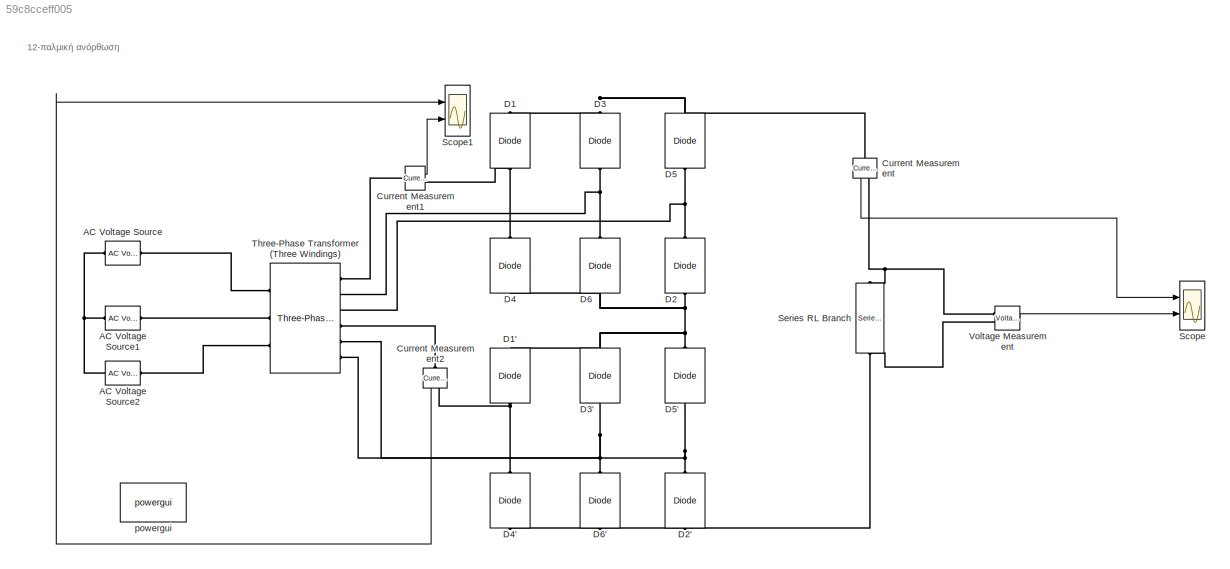
MODEL slx_59c8cceff005
KIND model
BLOCK [Reference] AC Voltage Source  REF=powerlib/Electrical
Sources/AC Voltage Source
  Amplitude = 380
  Frequency = 50
  Measurements = None
  Phase = 0
  Ports = [0, 0, 0, 0, 0, 1, 1]
  SampleTime = 0
  SourceBlock = powerlib/Electrical\nSources/AC Voltage Source
  SourceType = AC Voltage Source
BLOCK [Reference] AC Voltage Source1  REF=powerlib/Electrical
Sources/AC Voltage Source
  Amplitude = 380
  Frequency = 50
  Measurements = None
  Phase = -120
  Ports = [0, 0, 0, 0, 0, 1, 1]
  SampleTime = 0
  SourceBlock = powerlib/Electrical\nSources/AC Voltage Source
  SourceType = AC Voltage Source
BLOCK [Reference] AC Voltage Source2  REF=powerlib/Electrical
Sources/AC Voltage Source
  Amplitude = 380
  Frequency = 50
  Measurements = None
  Phase = 120
  Ports = [0, 0, 0, 0, 0, 1, 1]
  SampleTime = 0
  SourceBlock = powerlib/Electrical\nSources/AC Voltage Source
  SourceType = AC Voltage Source
BLOCK [Reference] Current Measurement  REF=powerlib/Measurements/Current Measurement
  OutputType = Complex
  PSBequivalent = 0
  PhasorSimulation = off
  Ports = [0, 1, 0, 0, 0, 1, 1]
  SourceBlock = powerlib/Measurements/Current Measurement
  SourceType = Current Measurement
  UserDataPersistent = on
BLOCK [Reference] Current Measurement1  REF=powerlib/Measurements/Current Measurement
  OutputType = Complex
  PSBequivalent = 0
  PhasorSimulation = off
  Ports = [0, 1, 0, 0, 0, 1, 1]
  SourceBlock = powerlib/Measurements/Current Measurement
  SourceType = Current Measurement
  UserDataPersistent = on
BLOCK [Reference] Current Measurement2  REF=powerlib/Measurements/Current Measurement
  OutputType = Complex
  PSBequivalent = 0
  PhasorSimulation = off
  Ports = [0, 1, 0, 0, 0, 1, 1]
  SourceBlock = powerlib/Measurements/Current Measurement
  SourceType = Current Measurement
  UserDataPersistent = on
BLOCK [Reference] D1  REF=powerlib/Power
Electronics/Diode
  Cs = 250e-9
  IC = 0
  Lon = 0
  Measurements = off
  Ports = [0, 0, 0, 0, 0, 1, 1]
  Ron = 0.001
  Rs = 500
  SourceBlock = powerlib/Power\nElectronics/Diode
  SourceType = Diode
  UseSnubber = off
  Vf = 0.8
BLOCK [Reference] D1'  REF=powerlib/Power
Electronics/Diode
  Cs = 250e-9
  IC = 0
  Lon = 0
  Measurements = off
  Ports = [0, 0, 0, 0, 0, 1, 1]
  Ron = 0.001
  Rs = 500
  SourceBlock = powerlib/Power\nElectronics/Diode
  SourceType = Diode
  UseSnubber = off
  Vf = 0.8
BLOCK [Reference] D2  REF=powerlib/Power
Electronics/Diode
  Cs = 250e-9
  IC = 0
  Lon = 0
  Measurements = off
  Ports = [0, 0, 0, 0, 0, 1, 1]
  Ron = 0.001
  Rs = 500
  SourceBlock = powerlib/Power\nElectronics/Diode
  SourceType = Diode
  UseSnubber = off
  Vf = 0.8
BLOCK [Reference] D2'  REF=powerlib/Power
Electronics/Diode
  Cs = 250e-9
  IC = 0
  Lon = 0
  Measurements = off
  Ports = [0, 0, 0, 0, 0, 1, 1]
  Ron = 0.001
  Rs = 500
  SourceBlock = powerlib/Power\nElectronics/Diode
  SourceType = Diode
  UseSnubber = off
  Vf = 0.8
BLOCK [Reference] D3  REF=powerlib/Power
Electronics/Diode
  Cs = 250e-9
  IC = 0
  Lon = 0
  Measurements = off
  Ports = [0, 0, 0, 0, 0, 1, 1]
  Ron = 0.001
  Rs = 500
  SourceBlock = powerlib/Power\nElectronics/Diode
  SourceType = Diode
  UseSnubber = off
  Vf = 0.8
BLOCK [Reference] D3'  REF=powerlib/Power
Electronics/Diode
  Cs = 250e-9
  IC = 0
  Lon = 0
  Measurements = off
  Ports = [0, 0, 0, 0, 0, 1, 1]
  Ron = 0.001
  Rs = 500
  SourceBlock = powerlib/Power\nElectronics/Diode
  SourceType = Diode
  UseSnubber = off
  Vf = 0.8
BLOCK [Reference] D4  REF=powerlib/Power
Electronics/Diode
  Cs = 250e-9
  IC = 0
  Lon = 0
  Measurements = off
  Ports = [0, 0, 0, 0, 0, 1, 1]
  Ron = 0.001
  Rs = 500
  SourceBlock = powerlib/Power\nElectronics/Diode
  SourceType = Diode
  UseSnubber = off
  Vf = 0.8
BLOCK [Reference] D4'  REF=powerlib/Power
Electronics/Diode
  Cs = 250e-9
  IC = 0
  Lon = 0
  Measurements = off
  Ports = [0, 0, 0, 0, 0, 1, 1]
  Ron = 0.001
  Rs = 500
  SourceBlock = powerlib/Power\nElectronics/Diode
  SourceType = Diode
  UseSnubber = off
  Vf = 0.8
BLOCK [Reference] D5  REF=powerlib/Power
Electronics/Diode
  Cs = 250e-9
  IC = 0
  Lon = 0
  Measurements = off
  Ports = [0, 0, 0, 0, 0, 1, 1]
  Ron = 0.001
  Rs = 500
  SourceBlock = powerlib/Power\nElectronics/Diode
  SourceType = Diode
  UseSnubber = off
  Vf = 0.8
BLOCK [Reference] D5'  REF=powerlib/Power
Electronics/Diode
  Cs = 250e-9
  IC = 0
  Lon = 0
  Measurements = off
  Ports = [0, 0, 0, 0, 0, 1, 1]
  Ron = 0.001
  Rs = 500
  SourceBlock = powerlib/Power\nElectronics/Diode
  SourceType = Diode
  UseSnubber = off
  Vf = 0.8
BLOCK [Reference] D6  REF=powerlib/Power
Electronics/Diode
  Cs = 250e-9
  IC = 0
  Lon = 0
  Measurements = off
  Ports = [0, 0, 0, 0, 0, 1, 1]
  Ron = 0.001
  Rs = 500
  SourceBlock = powerlib/Power\nElectronics/Diode
  SourceType = Diode
  UseSnubber = off
  Vf = 0.8
BLOCK [Reference] D6'  REF=powerlib/Power
Electronics/Diode
  Cs = 250e-9
  IC = 0
  Lon = 0
  Measurements = off
  Ports = [0, 0, 0, 0, 0, 1, 1]
  Ron = 0.001
  Rs = 500
  SourceBlock = powerlib/Power\nElectronics/Diode
  SourceType = Diode
  UseSnubber = off
  Vf = 0.8
BLOCK [Scope] Scope
  Floating = off
  NumInputPorts = 2
  Ports = [2]
  ShowLegends = off
  YMax = 50~400
  YMin = 0~0
  ZoomMode = yonly
BLOCK [Scope] Scope1
  Floating = off
  NumInputPorts = 2
  Ports = [2]
  SaveName = ScopeData1
  ShowLegends = off
  YMax = 400~5
  YMin = 0~-5
  ZoomMode = yonly
BLOCK [Reference] Series RL Branch  REF=powerlib/Elements/Series RLC Branch
  BranchType = RL
  Capacitance = 1e-6
  Inductance = 650e-3
  InitialCurrent = 0
  InitialVoltage = 0
  LConnTagsString = __new0
  Measurements = None
  Ports = [0, 0, 0, 0, 0, 1, 1]
  RConnTagsString = __new0
  Resistance = 10
  SetiL0 = off
  Setx0 = off
  SourceBlock = powerlib/Elements/Series RLC Branch
  SourceType = Series RLC Branch
BLOCK [Reference] Three-Phase Transformer (Three Windings)  REF=powerlib/Elements/Three-Phase
Transformer
(Three Windings)
  BreakLoop = off
  DataFile = 'hysteresis'
  DataType = off
  Hysteresis = off
  InitialFluxes = [0.8 -0.8 0.7]
  Lm = 500
  Measurements = None
  MoreParameters = off
  NominalPower = [ 250e6 , 50 ]
  Ports = [0, 0, 0, 0, 0, 3, 6]
  Rm = 500
  Saturation = [ 0,0 ; 0.0024,1.2 ; 1.0,1.52 ]
  SetInitialFlux = off
  SetSaturation = off
  SourceBlock = powerlib/Elements/Three-Phase\nTransformer\n(Three Windings)
  SourceType = Three-Phase Transformer (Three Windings)
  TransfoNumber = 1
  UNITS = pu
  Winding1 = [ 380 , 0.002 , 0.08 ]
  Winding1Connection = Y
  Winding2 = [ 100 , 0.002 , 0.08 ]
  Winding2Connection = Y
  Winding3 = [ 100 , 0.002 , 0.08 ]
  Winding3Connection = Delta (D1)
BLOCK [Reference] Voltage Measurement  REF=powerlib/Measurements/Voltage Measurement
  OutputType = Complex
  PSBequivalent = 0
  PhasorSimulation = off
  Ports = [0, 1, 0, 0, 0, 2]
  SourceBlock = powerlib/Measurements/Voltage Measurement
  SourceType = Voltage Measurement
  UserDataPersistent = on
BLOCK [Reference] powergui  REF=powerlib/powergui
  DisableRonSwitches = off
  DisableSnubberDevices = off
  DisableVfSwitches = off
  DisplayEquations = off
  DisplayStyle = 1
  EnableUseOfTLC = off
  ErrMax = 1e-4
  Frange = [0:2:500]
  FreqAxis = off
  FunctionMessages = off
  HookPort = off
  Interpol = off
  Iterations = 50
  MaxFrequency = 1000
  Pbase = 100e6
  Ports = []
  Priority = 1
  ResistiveCurrentMeasurement = off
  RestoreLinks = warning
  RmsSteady = 1
  SPID = off
  SampleTime = 50e-6
  ShowGrid = off
  SolverType = Tustin
  SourceBlock = powerlib/powergui
  SourceType = PSB option menu block
  StartTime = 0.0
  SwTol = 0
  Ts = 0
  UnitsV = kV
  UnitsW = MW
  UserDataPersistent = on
  Xlog = on
  Ylog = off
  ZoomFFT = off
  cycles = 1
  display = off
  echomessages = off
  frequency = 60
  frequencyindice = 50
  frequencyindicesteady = 1
  fundamental = 60
  methode = off
  save = off
  structure = 0
  variable = ZData
  x0status = blocks
ANNOTATION (root): 12-παλμική ανόρθωση
LINE Current Measurement1:1 -> Scope1:2
LINE Current Measurement2:1 -> Scope1:1
LINE Current Measurement:1 -> Scope:1
LINE Voltage Measurement:1 -> Scope:2
PNET net1: AC Voltage Source1:LConn1 -- AC Voltage Source2:LConn1 -- AC Voltage Source:LConn1
PLINE AC Voltage Source1:RConn1 -- Three-Phase Transformer (Three Windings):LConn2
PLINE AC Voltage Source2:RConn1 -- Three-Phase Transformer (Three Windings):LConn3
PLINE AC Voltage Source:RConn1 -- Three-Phase Transformer (Three Windings):LConn1
PLINE Current Measurement1:LConn1 -- Three-Phase Transformer (Three Windings):RConn1
PNET net2: Current Measurement1:RConn1 -- D1:LConn1 -- D4:RConn1
PLINE Current Measurement2:LConn1 -- Three-Phase Transformer (Three Windings):RConn4
PNET net3: Current Measurement2:RConn1 -- D1':LConn1 -- D4':RConn1
PNET net4: Current Measurement:LConn1 -- D1:RConn1 -- D3:RConn1 -- D5:RConn1
PNET net5: Current Measurement:RConn1 -- Series RL Branch:LConn1 -- Voltage Measurement:LConn1
PNET net6: D1':RConn1 -- D2:LConn1 -- D3':RConn1 -- D4:LConn1 -- D5':RConn1 -- D6:LConn1
PNET net7: D2':LConn1 -- D4':LConn1 -- D6':LConn1 -- Series RL Branch:RConn1 -- Voltage Measurement:LConn2
PNET net8: D2':RConn1 -- D5':LConn1 -- Three-Phase Transformer (Three Windings):RConn6
PNET net9: D2:RConn1 -- D5:LConn1 -- Three-Phase Transformer (Three Windings):RConn3
PNET net10: D3':LConn1 -- D6':RConn1 -- Three-Phase Transformer (Three Windings):RConn5
PNET net11: D3:LConn1 -- D6:RConn1 -- Three-Phase Transformer (Three Windings):RConn2
note: PNET lines group multi-terminal physical nets as a canonical sorted terminal list (undirected conserving connections); 2-terminal nets keep the pairwise PLINE form
